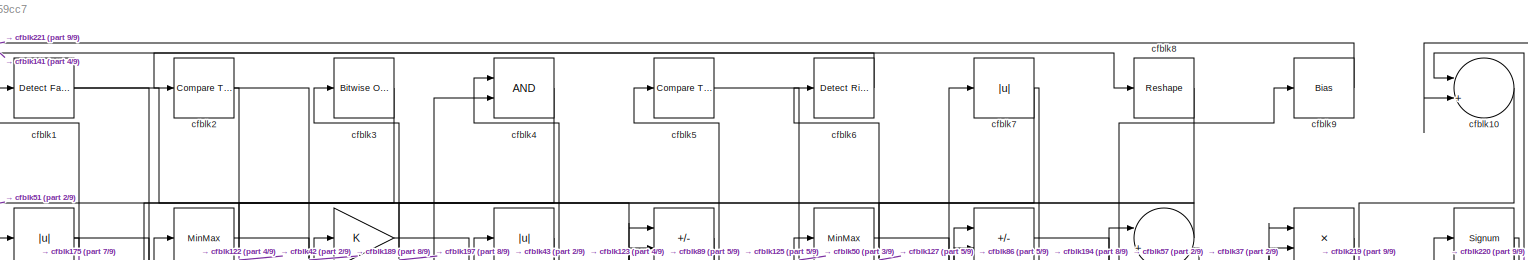
[diagram: root canvas - part 1/9, full width, top band]
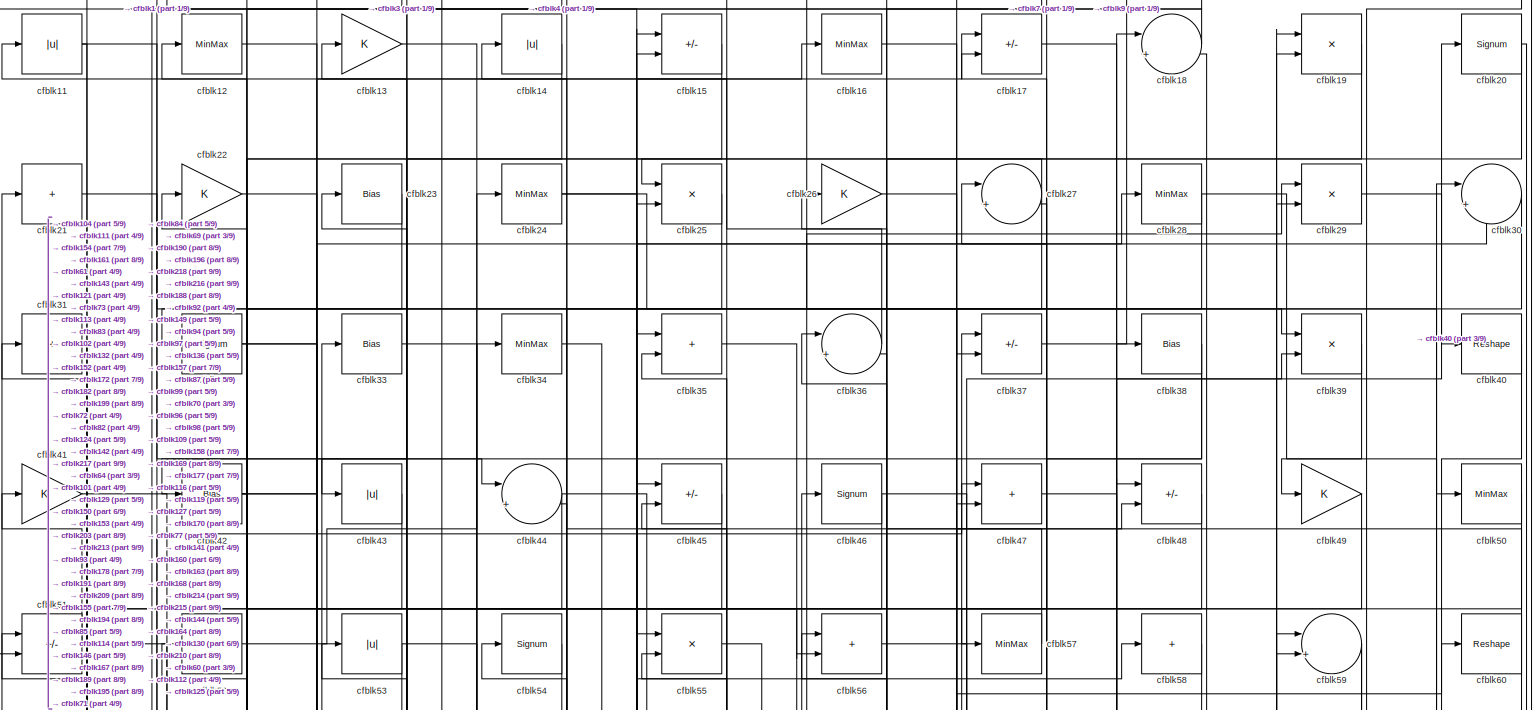
[diagram: root canvas - part 2/9, full width, top band]
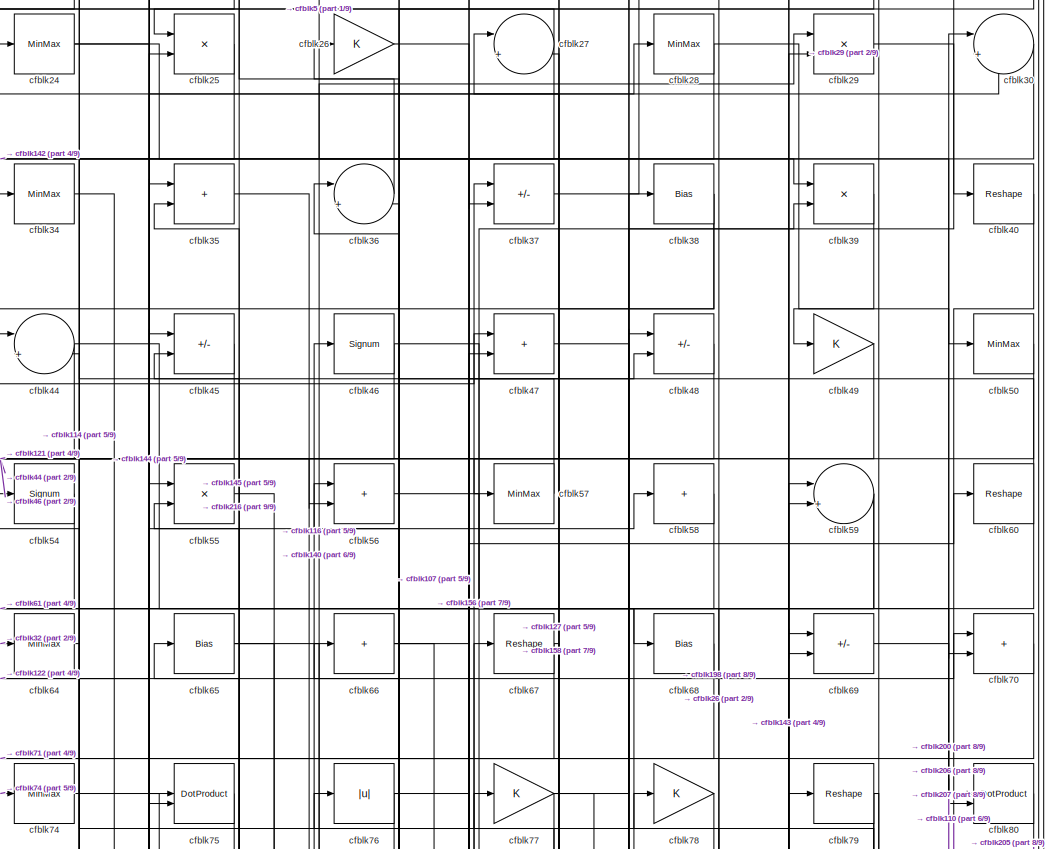
[diagram: root canvas - part 3/9, top center region]
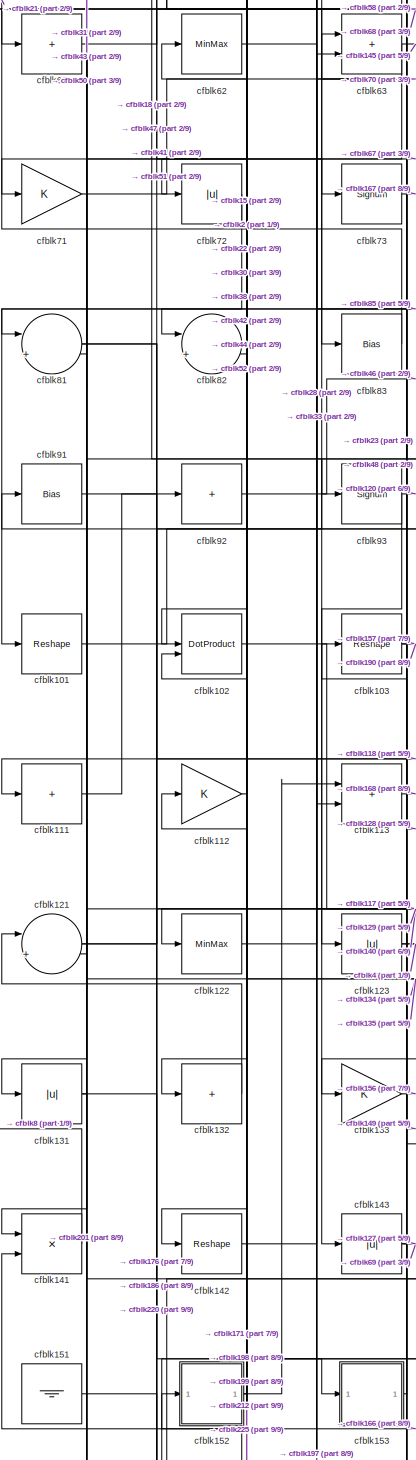
[diagram: root canvas - part 4/9, middle left region]
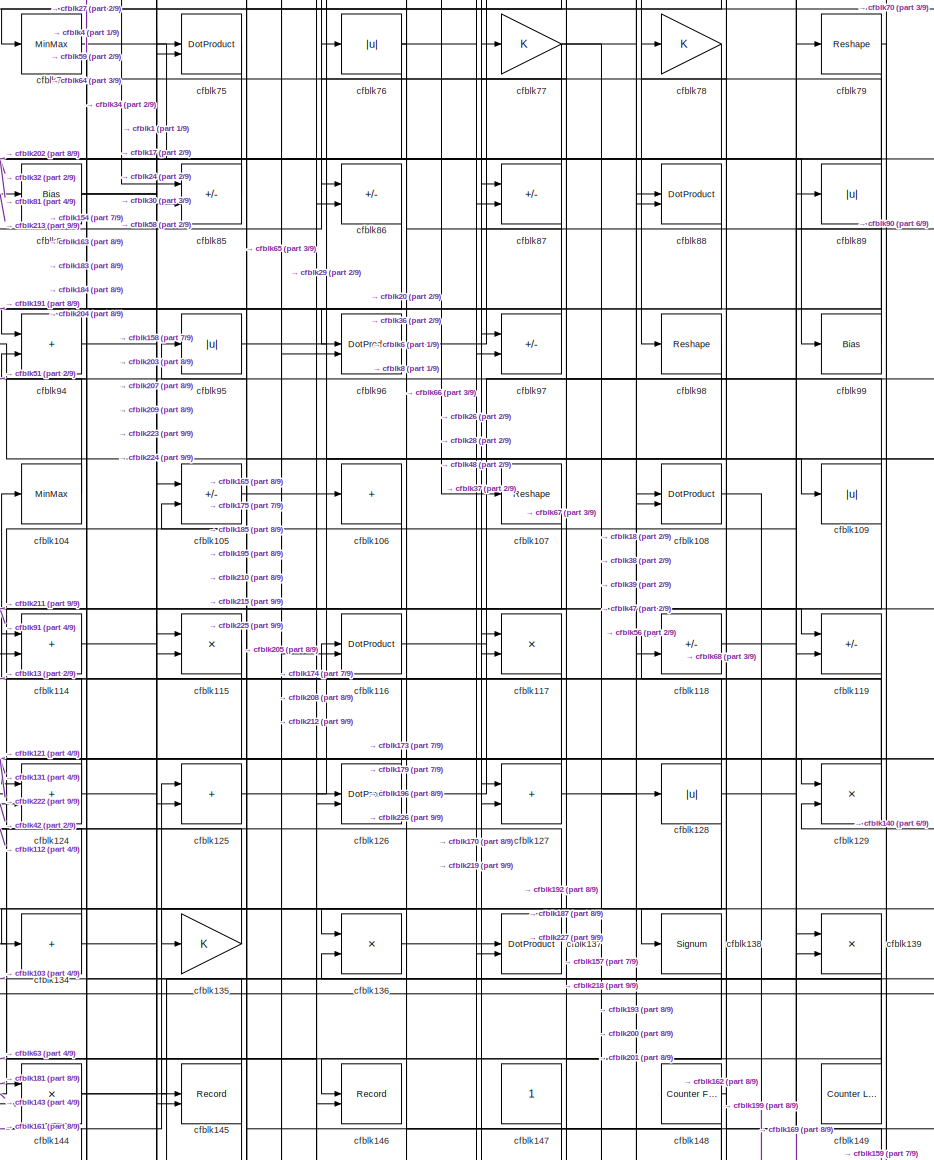
[diagram: root canvas - part 5/9, central region]
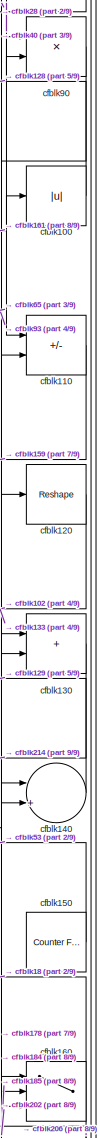
[diagram: root canvas - part 6/9, middle right region]
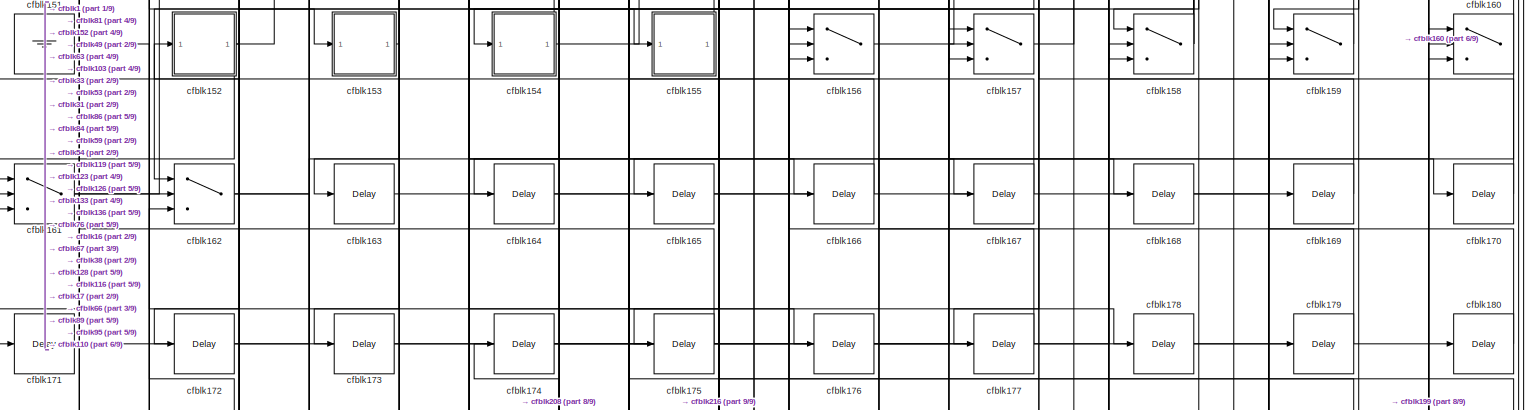
[diagram: root canvas - part 7/9, full width, bottom band]
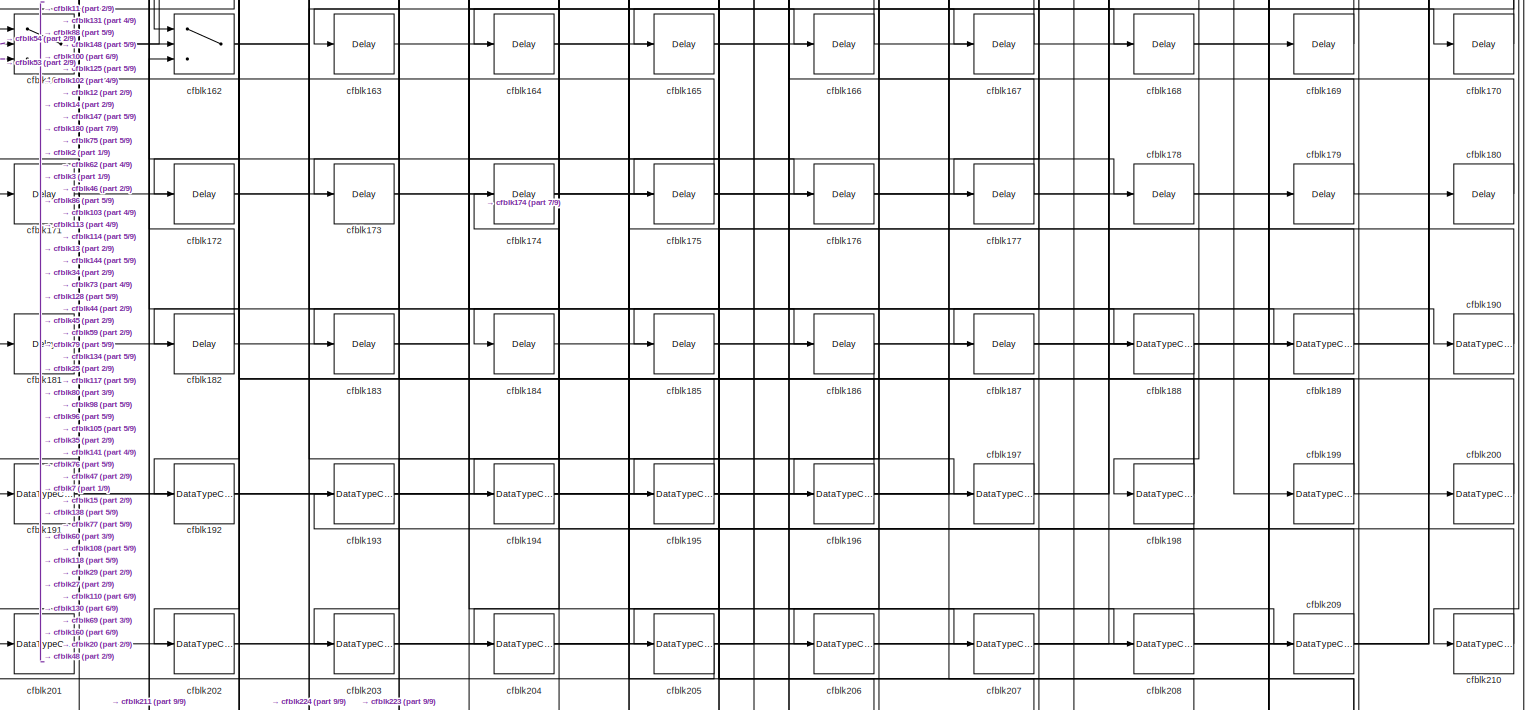
[diagram: root canvas - part 8/9, full width, bottom band]
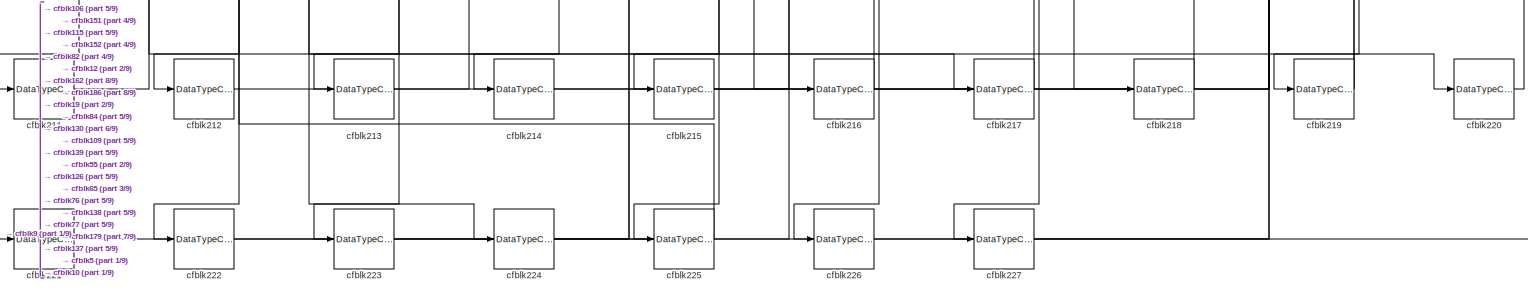
[diagram: root canvas - part 9/9, full width, bottom band]
MODEL slx_86e10d959cc7
KIND model
CONFIG AbsTol = auto
CONFIG EnableMultiTasking = off
CONFIG FixedStep = auto
CONFIG MaxStep = auto
CONFIG MinStep = auto
CONFIG RelTol = 1e-3
CONFIG SampleTimeConstraint = Unconstrained
CONFIG SolverName = VariableStepAuto
CONFIG StartTime = 0.0
CONFIG StopTime = 10.0
BLOCK [Reference] cfblk1  REF=hdlsllib/Logic and Bit
Operations/Detect Fall
Nonpositive
  SourceBlock = hdlsllib/Logic and Bit\nOperations/Detect Fall\nNonpositive
  SourceType = Detect Fall Nonpositive
BLOCK [Sum] cfblk10
  Inputs = |++
BLOCK [Abs] cfblk100
  SaturateOnIntegerOverflow = off
BLOCK [Reshape] cfblk101
BLOCK [DotProduct] cfblk102
  OutDataTypeStr = Inherit: Inherit via internal rule
BLOCK [Reshape] cfblk103
BLOCK [MinMax] cfblk104
BLOCK [Sum] cfblk105
  IconShape = rectangular
  Inputs = +-
BLOCK [Sum] cfblk106
  IconShape = rectangular
  Inputs = +
BLOCK [Reshape] cfblk107
BLOCK [DotProduct] cfblk108
  OutDataTypeStr = Inherit: Inherit via internal rule
BLOCK [Abs] cfblk109
  SaturateOnIntegerOverflow = off
BLOCK [Abs] cfblk11
  SaturateOnIntegerOverflow = off
BLOCK [Sum] cfblk110
  IconShape = rectangular
  Inputs = +-
BLOCK [Sum] cfblk111
  IconShape = rectangular
  Inputs = +
BLOCK [Gain] cfblk112
BLOCK [Sum] cfblk113
  IconShape = rectangular
BLOCK [Sum] cfblk114
  IconShape = rectangular
BLOCK [Product] cfblk115
  Inputs = */
  RndMeth = Zero
  SaturateOnIntegerOverflow = on
BLOCK [DotProduct] cfblk116
  OutDataTypeStr = Inherit: Inherit via internal rule
BLOCK [Product] cfblk117
  Inputs = */
  RndMeth = Zero
  SaturateOnIntegerOverflow = on
BLOCK [Sum] cfblk118
  IconShape = rectangular
  Inputs = +-
BLOCK [Sum] cfblk119
  IconShape = rectangular
  Inputs = +-
BLOCK [MinMax] cfblk12
BLOCK [Reshape] cfblk120
BLOCK [Sum] cfblk121
  Inputs = |++
BLOCK [MinMax] cfblk122
BLOCK [Abs] cfblk123
  SaturateOnIntegerOverflow = off
BLOCK [Sum] cfblk124
  IconShape = rectangular
BLOCK [Sum] cfblk125
  IconShape = rectangular
BLOCK [DotProduct] cfblk126
  OutDataTypeStr = Inherit: Inherit via internal rule
BLOCK [Sum] cfblk127
  IconShape = rectangular
BLOCK [Abs] cfblk128
  SaturateOnIntegerOverflow = off
BLOCK [Product] cfblk129
  Inputs = */
  RndMeth = Zero
  SaturateOnIntegerOverflow = on
BLOCK [Gain] cfblk13
BLOCK [Sum] cfblk130
  IconShape = rectangular
BLOCK [Abs] cfblk131
  SaturateOnIntegerOverflow = off
BLOCK [Sum] cfblk132
  IconShape = rectangular
  Inputs = +
BLOCK [Gain] cfblk133
BLOCK [Sum] cfblk134
  IconShape = rectangular
  Inputs = +
BLOCK [Gain] cfblk135
BLOCK [Product] cfblk136
  Inputs = */
  RndMeth = Zero
  SaturateOnIntegerOverflow = on
BLOCK [DotProduct] cfblk137
  OutDataTypeStr = Inherit: Inherit via internal rule
BLOCK [Signum] cfblk138
BLOCK [Product] cfblk139
  Inputs = */
  RndMeth = Zero
  SaturateOnIntegerOverflow = on
BLOCK [Abs] cfblk14
  SaturateOnIntegerOverflow = off
BLOCK [Sum] cfblk140
  Inputs = |++
BLOCK [Product] cfblk141
  Inputs = */
  RndMeth = Zero
  SaturateOnIntegerOverflow = on
BLOCK [Reshape] cfblk142
BLOCK [Abs] cfblk143
  SaturateOnIntegerOverflow = off
BLOCK [Product] cfblk144
  Inputs = */
  RndMeth = Zero
  SaturateOnIntegerOverflow = on
BLOCK [Record] cfblk145
  CompatibilityTag = XY
  FileSettingsInternal = {"entries":[{"content":{"excelSettings":{"content":{},"type":"Streamout.ExcelSettings"}},"type":"Streamout.FileSettingStorage","uuid":""}],"packageUris":["http:\/\/schema.mathworks.com\/mf0\/streamout_blocks\/R2020a"],"version":"1.0"}
  Layout = [1 1]
  SignalsInternal = {"entries":[{"content":{"signals":[{"content":{"blockPath":[],"dimensions":[1],"domain":"","lineColor":"#a2142f","plots":[1],"port":1,"sid":[""],"signalID":2629,"signalName":"cfblk70"},"type":"RecordBlkView.Signal","uuid":""},{"content":{"blockPath":[],"dimensions":[1],"domain":"","lineColor":"#139fff","plots":[1],"port":2,"sid":[""],"signalID":2633,"signalName":"cfblk63"},"type":"RecordBlkView.Si...<+162ch>
  VisualizationBindings = {"xyplotplugin":{"info":[{"series":[{"bindingParametersList":[{"parameter":"X-Axis","signalID":2629,"signalName":"cfblk70"},{"parameter":"Y-Axis","signalID":2633,"signalName":"cfblk63"}],"seriesID":37578}],"subplotID":1}]}}
  st = -1
BLOCK [Record] cfblk146
  CompatibilityTag = XY
  FileSettingsInternal = {"entries":[{"content":{"excelSettings":{"content":{},"type":"Streamout.ExcelSettings"}},"type":"Streamout.FileSettingStorage","uuid":""}],"packageUris":["http:\/\/schema.mathworks.com\/mf0\/streamout_blocks\/R2020a"],"version":"1.0"}
  Layout = [1 1]
  SignalsInternal = {"entries":[{"content":{"signals":[{"content":{"blockPath":[],"dimensions":[1],"domain":"","lineColor":"#a2142f","plots":[1],"port":1,"sid":[""],"signalID":2639,"signalName":"cfblk78"},"type":"RecordBlkView.Signal","uuid":""},{"content":{"blockPath":[],"dimensions":[1],"domain":"","lineColor":"#139fff","plots":[1],"port":2,"sid":[""],"signalID":2643,"signalName":"cfblk24"},"type":"RecordBlkView.Si...<+162ch>
  VisualizationBindings = {"xyplotplugin":{"info":[{"series":[{"bindingParametersList":[{"parameter":"X-Axis","signalID":2639,"signalName":"cfblk78"},{"parameter":"Y-Axis","signalID":2643,"signalName":"cfblk24"}],"seriesID":61667}],"subplotID":1}]}}
  st = -1
BLOCK [Constant] cfblk147
  SampleTime = -1
BLOCK [Reference] cfblk148  REF=hdlsllib/Sources/Counter
Free-Running
  SourceBlock = hdlsllib/Sources/Counter\nFree-Running
  SourceType = Counter Free-Running
BLOCK [Reference] cfblk149  REF=hdlsllib/Sources/Counter
Limited
  SourceBlock = hdlsllib/Sources/Counter\nLimited
  SourceType = Counter Limited
BLOCK [Sum] cfblk15
  IconShape = rectangular
  Inputs = +-
BLOCK [Reference] cfblk150  REF=hdlsllib/Sources/Counter
Free-Running
  SourceBlock = hdlsllib/Sources/Counter\nFree-Running
  SourceType = Counter Free-Running
BLOCK [Ground] cfblk151
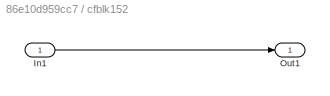
BLOCK [SubSystem] cfblk152
  LibrarySourceBlock = hdlsllib/Ports &\nSubsystems/Subsystem
BLOCK [Inport] cfblk152/In1
BLOCK [Outport] cfblk152/Out1
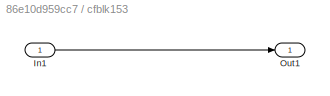
BLOCK [SubSystem] cfblk153
  LibrarySourceBlock = hdlsllib/Ports &\nSubsystems/Subsystem
BLOCK [Inport] cfblk153/In1
BLOCK [Outport] cfblk153/Out1
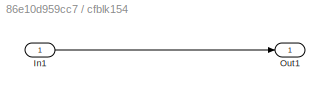
BLOCK [SubSystem] cfblk154
  LibrarySourceBlock = hdlsllib/Ports &\nSubsystems/Subsystem
BLOCK [Inport] cfblk154/In1
BLOCK [Outport] cfblk154/Out1
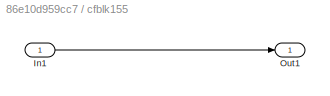
BLOCK [SubSystem] cfblk155
  LibrarySourceBlock = hdlsllib/Ports &\nSubsystems/Subsystem
BLOCK [Inport] cfblk155/In1
BLOCK [Outport] cfblk155/Out1
BLOCK [Switch] cfblk156
  InputSameDT = off
  SaturateOnIntegerOverflow = off
BLOCK [Switch] cfblk157
  InputSameDT = off
  SaturateOnIntegerOverflow = off
BLOCK [Switch] cfblk158
  InputSameDT = off
  SaturateOnIntegerOverflow = off
BLOCK [Switch] cfblk159
  InputSameDT = off
  SaturateOnIntegerOverflow = off
BLOCK [MinMax] cfblk16
BLOCK [Switch] cfblk160
  InputSameDT = off
  SaturateOnIntegerOverflow = off
BLOCK [Switch] cfblk161
  InputSameDT = off
  SaturateOnIntegerOverflow = off
BLOCK [Switch] cfblk162
  InputSameDT = off
  SaturateOnIntegerOverflow = off
BLOCK [Delay] cfblk163
  InputPortMap = u0
  SampleTime = 1
BLOCK [Delay] cfblk164
  InputPortMap = u0
  SampleTime = 1
BLOCK [Delay] cfblk165
  InputPortMap = u0
  SampleTime = 1
BLOCK [Delay] cfblk166
  InputPortMap = u0
  SampleTime = 1
BLOCK [Delay] cfblk167
  InputPortMap = u0
  SampleTime = 1
BLOCK [Delay] cfblk168
  InputPortMap = u0
  SampleTime = 1
BLOCK [Delay] cfblk169
  InputPortMap = u0
  SampleTime = 1
BLOCK [Sum] cfblk17
  IconShape = rectangular
  Inputs = +-
BLOCK [Delay] cfblk170
  InputPortMap = u0
  SampleTime = 1
BLOCK [Delay] cfblk171
  InputPortMap = u0
  SampleTime = 1
BLOCK [Delay] cfblk172
  InputPortMap = u0
  SampleTime = 1
BLOCK [Delay] cfblk173
  InputPortMap = u0
  SampleTime = 1
BLOCK [Delay] cfblk174
  InputPortMap = u0
  SampleTime = 1
BLOCK [Delay] cfblk175
  InputPortMap = u0
  SampleTime = 1
BLOCK [Delay] cfblk176
  InputPortMap = u0
  SampleTime = 1
BLOCK [Delay] cfblk177
  InputPortMap = u0
  SampleTime = 1
BLOCK [Delay] cfblk178
  InputPortMap = u0
  SampleTime = 1
BLOCK [Delay] cfblk179
  InputPortMap = u0
  SampleTime = 1
BLOCK [Sum] cfblk18
  Inputs = |++
BLOCK [Delay] cfblk180
  InputPortMap = u0
  SampleTime = 1
BLOCK [Delay] cfblk181
  InputPortMap = u0
  SampleTime = 1
BLOCK [Delay] cfblk182
  InputPortMap = u0
  SampleTime = 1
BLOCK [Delay] cfblk183
  InputPortMap = u0
  SampleTime = 1
BLOCK [Delay] cfblk184
  InputPortMap = u0
  SampleTime = 1
BLOCK [Delay] cfblk185
  InputPortMap = u0
  SampleTime = 1
BLOCK [Delay] cfblk186
  InputPortMap = u0
  SampleTime = 1
BLOCK [Delay] cfblk187
  InputPortMap = u0
  SampleTime = 1
BLOCK [DataTypeConversion] cfblk188
  OutDataTypeStr = uint8
  RndMeth = Floor
  SaturateOnIntegerOverflow = off
BLOCK [DataTypeConversion] cfblk189
  OutDataTypeStr = uint8
  RndMeth = Floor
  SaturateOnIntegerOverflow = off
BLOCK [Product] cfblk19
  Inputs = */
  RndMeth = Zero
  SaturateOnIntegerOverflow = on
BLOCK [DataTypeConversion] cfblk190
  OutDataTypeStr = uint8
  RndMeth = Floor
  SaturateOnIntegerOverflow = off
BLOCK [DataTypeConversion] cfblk191
  RndMeth = Floor
  SaturateOnIntegerOverflow = off
BLOCK [DataTypeConversion] cfblk192
  OutDataTypeStr = uint8
  RndMeth = Floor
  SaturateOnIntegerOverflow = off
BLOCK [DataTypeConversion] cfblk193
  OutDataTypeStr = uint8
  RndMeth = Floor
  SaturateOnIntegerOverflow = off
BLOCK [DataTypeConversion] cfblk194
  RndMeth = Floor
  SaturateOnIntegerOverflow = off
BLOCK [DataTypeConversion] cfblk195
  OutDataTypeStr = uint8
  RndMeth = Floor
  SaturateOnIntegerOverflow = off
BLOCK [DataTypeConversion] cfblk196
  OutDataTypeStr = uint8
  RndMeth = Floor
  SaturateOnIntegerOverflow = off
BLOCK [DataTypeConversion] cfblk197
  OutDataTypeStr = uint8
  RndMeth = Floor
  SaturateOnIntegerOverflow = off
BLOCK [DataTypeConversion] cfblk198
  OutDataTypeStr = uint8
  RndMeth = Floor
  SaturateOnIntegerOverflow = off
BLOCK [DataTypeConversion] cfblk199
  RndMeth = Floor
  SaturateOnIntegerOverflow = off
BLOCK [Reference] cfblk2  REF=hdlsllib/Logic and Bit
Operations/Compare
To Constant
  SourceBlock = hdlsllib/Logic and Bit\nOperations/Compare\nTo Constant
  SourceType = Compare To Constant
BLOCK [Signum] cfblk20
BLOCK [DataTypeConversion] cfblk200
  OutDataTypeStr = uint8
  RndMeth = Floor
  SaturateOnIntegerOverflow = off
BLOCK [DataTypeConversion] cfblk201
  OutDataTypeStr = uint8
  RndMeth = Floor
  SaturateOnIntegerOverflow = off
BLOCK [DataTypeConversion] cfblk202
  OutDataTypeStr = uint8
  RndMeth = Floor
  SaturateOnIntegerOverflow = off
BLOCK [DataTypeConversion] cfblk203
  OutDataTypeStr = uint8
  RndMeth = Floor
  SaturateOnIntegerOverflow = off
BLOCK [DataTypeConversion] cfblk204
  OutDataTypeStr = uint8
  RndMeth = Floor
  SaturateOnIntegerOverflow = off
BLOCK [DataTypeConversion] cfblk205
  RndMeth = Floor
  SaturateOnIntegerOverflow = off
BLOCK [DataTypeConversion] cfblk206
  OutDataTypeStr = uint8
  RndMeth = Floor
  SaturateOnIntegerOverflow = off
BLOCK [DataTypeConversion] cfblk207
  OutDataTypeStr = uint8
  RndMeth = Floor
  SaturateOnIntegerOverflow = off
BLOCK [DataTypeConversion] cfblk208
  OutDataTypeStr = uint8
  RndMeth = Floor
  SaturateOnIntegerOverflow = off
BLOCK [DataTypeConversion] cfblk209
  OutDataTypeStr = uint8
  RndMeth = Floor
  SaturateOnIntegerOverflow = off
BLOCK [Sum] cfblk21
  IconShape = rectangular
  Inputs = +
BLOCK [DataTypeConversion] cfblk210
  OutDataTypeStr = uint8
  RndMeth = Floor
  SaturateOnIntegerOverflow = off
BLOCK [DataTypeConversion] cfblk211
  OutDataTypeStr = uint8
  RndMeth = Floor
  SaturateOnIntegerOverflow = off
BLOCK [DataTypeConversion] cfblk212
  OutDataTypeStr = uint8
  RndMeth = Floor
  SaturateOnIntegerOverflow = off
BLOCK [DataTypeConversion] cfblk213
  OutDataTypeStr = uint8
  RndMeth = Floor
  SaturateOnIntegerOverflow = off
BLOCK [DataTypeConversion] cfblk214
  OutDataTypeStr = uint8
  RndMeth = Floor
  SaturateOnIntegerOverflow = off
BLOCK [DataTypeConversion] cfblk215
  OutDataTypeStr = uint8
  RndMeth = Floor
  SaturateOnIntegerOverflow = off
BLOCK [DataTypeConversion] cfblk216
  RndMeth = Floor
  SaturateOnIntegerOverflow = off
BLOCK [DataTypeConversion] cfblk217
  OutDataTypeStr = uint8
  RndMeth = Floor
  SaturateOnIntegerOverflow = off
BLOCK [DataTypeConversion] cfblk218
  OutDataTypeStr = uint8
  RndMeth = Floor
  SaturateOnIntegerOverflow = off
BLOCK [DataTypeConversion] cfblk219
  RndMeth = Floor
  SaturateOnIntegerOverflow = off
BLOCK [Gain] cfblk22
BLOCK [DataTypeConversion] cfblk220
  OutDataTypeStr = uint8
  RndMeth = Floor
  SaturateOnIntegerOverflow = off
BLOCK [DataTypeConversion] cfblk221
  OutDataTypeStr = uint8
  RndMeth = Floor
  SaturateOnIntegerOverflow = off
BLOCK [DataTypeConversion] cfblk222
  OutDataTypeStr = uint8
  RndMeth = Floor
  SaturateOnIntegerOverflow = off
BLOCK [DataTypeConversion] cfblk223
  OutDataTypeStr = uint8
  RndMeth = Floor
  SaturateOnIntegerOverflow = off
BLOCK [DataTypeConversion] cfblk224
  OutDataTypeStr = uint8
  RndMeth = Floor
  SaturateOnIntegerOverflow = off
BLOCK [DataTypeConversion] cfblk225
  OutDataTypeStr = uint8
  RndMeth = Floor
  SaturateOnIntegerOverflow = off
BLOCK [DataTypeConversion] cfblk226
  OutDataTypeStr = uint8
  RndMeth = Floor
  SaturateOnIntegerOverflow = off
BLOCK [DataTypeConversion] cfblk227
  OutDataTypeStr = uint8
  RndMeth = Floor
  SaturateOnIntegerOverflow = off
BLOCK [Bias] cfblk23
  Bias = 0.0
  SaturateOnIntegerOverflow = off
BLOCK [MinMax] cfblk24
BLOCK [Product] cfblk25
  Inputs = */
  RndMeth = Zero
  SaturateOnIntegerOverflow = on
BLOCK [Gain] cfblk26
BLOCK [Sum] cfblk27
  Inputs = |++
BLOCK [MinMax] cfblk28
BLOCK [Product] cfblk29
  Inputs = */
  RndMeth = Zero
  SaturateOnIntegerOverflow = on
BLOCK [Reference] cfblk3  REF=simulink/Logic and Bit
Operations/Bitwise
Operator
  LibrarySourceBlock = hdlsllib/Logic and Bit\nOperations/Bitwise\nOperator
  SourceBlock = simulink/Logic and Bit\nOperations/Bitwise\nOperator
  SourceType = Bitwise Operator
BLOCK [Sum] cfblk30
  Inputs = |++
BLOCK [Sum] cfblk31
  IconShape = rectangular
  Inputs = +
BLOCK [Signum] cfblk32
BLOCK [Bias] cfblk33
  Bias = 0.0
  SaturateOnIntegerOverflow = off
BLOCK [MinMax] cfblk34
BLOCK [Sum] cfblk35
  IconShape = rectangular
BLOCK [Sum] cfblk36
  Inputs = |++
BLOCK [Sum] cfblk37
  IconShape = rectangular
  Inputs = +-
BLOCK [Bias] cfblk38
  Bias = 0.0
  SaturateOnIntegerOverflow = off
BLOCK [Product] cfblk39
  Inputs = */
  RndMeth = Zero
  SaturateOnIntegerOverflow = on
BLOCK [Logic] cfblk4
  AllPortsSameDT = off
  OutDataTypeStr = boolean
BLOCK [Reshape] cfblk40
BLOCK [Gain] cfblk41
BLOCK [Bias] cfblk42
  Bias = 0.0
  SaturateOnIntegerOverflow = off
BLOCK [Abs] cfblk43
  SaturateOnIntegerOverflow = off
BLOCK [Sum] cfblk44
  Inputs = |++
BLOCK [Sum] cfblk45
  IconShape = rectangular
  Inputs = +-
BLOCK [Signum] cfblk46
BLOCK [Sum] cfblk47
  IconShape = rectangular
BLOCK [Sum] cfblk48
  IconShape = rectangular
  Inputs = +-
BLOCK [Gain] cfblk49
BLOCK [Reference] cfblk5  REF=hdlsllib/Logic and Bit
Operations/Compare
To Constant
  SourceBlock = hdlsllib/Logic and Bit\nOperations/Compare\nTo Constant
  SourceType = Compare To Constant
BLOCK [MinMax] cfblk50
BLOCK [Sum] cfblk51
  IconShape = rectangular
  Inputs = +-
BLOCK [Sum] cfblk52
  IconShape = rectangular
  Inputs = +
BLOCK [Abs] cfblk53
  SaturateOnIntegerOverflow = off
BLOCK [Signum] cfblk54
BLOCK [Product] cfblk55
  Inputs = */
  RndMeth = Zero
  SaturateOnIntegerOverflow = on
BLOCK [Sum] cfblk56
  IconShape = rectangular
BLOCK [MinMax] cfblk57
BLOCK [Sum] cfblk58
  IconShape = rectangular
  Inputs = +
BLOCK [Sum] cfblk59
  Inputs = |++
BLOCK [Reference] cfblk6  REF=hdlsllib/Logic and Bit
Operations/Detect Rise
Positive
  SourceBlock = hdlsllib/Logic and Bit\nOperations/Detect Rise\nPositive
  SourceType = Detect Rise Positive
BLOCK [Reshape] cfblk60
BLOCK [Sum] cfblk61
  IconShape = rectangular
  Inputs = +
BLOCK [MinMax] cfblk62
BLOCK [Sum] cfblk63
  IconShape = rectangular
BLOCK [MinMax] cfblk64
BLOCK [Bias] cfblk65
  Bias = 0.0
  SaturateOnIntegerOverflow = off
BLOCK [Sum] cfblk66
  IconShape = rectangular
  Inputs = +
BLOCK [Reshape] cfblk67
BLOCK [Bias] cfblk68
  Bias = 0.0
  SaturateOnIntegerOverflow = off
BLOCK [Sum] cfblk69
  IconShape = rectangular
  Inputs = +-
BLOCK [Abs] cfblk7
  SaturateOnIntegerOverflow = off
BLOCK [Sum] cfblk70
  IconShape = rectangular
BLOCK [Gain] cfblk71
BLOCK [Abs] cfblk72
  SaturateOnIntegerOverflow = off
BLOCK [Signum] cfblk73
BLOCK [MinMax] cfblk74
BLOCK [DotProduct] cfblk75
  OutDataTypeStr = Inherit: Inherit via internal rule
BLOCK [Abs] cfblk76
  SaturateOnIntegerOverflow = off
BLOCK [Gain] cfblk77
BLOCK [Gain] cfblk78
BLOCK [Reshape] cfblk79
BLOCK [Reshape] cfblk8
BLOCK [DotProduct] cfblk80
  OutDataTypeStr = Inherit: Inherit via internal rule
BLOCK [Sum] cfblk81
  Inputs = |++
BLOCK [Sum] cfblk82
  Inputs = |++
BLOCK [Bias] cfblk83
  Bias = 0.0
  SaturateOnIntegerOverflow = off
BLOCK [Bias] cfblk84
  Bias = 0.0
  SaturateOnIntegerOverflow = off
BLOCK [Sum] cfblk85
  IconShape = rectangular
  Inputs = +-
BLOCK [Sum] cfblk86
  IconShape = rectangular
  Inputs = +-
BLOCK [Sum] cfblk87
  IconShape = rectangular
  Inputs = +-
BLOCK [DotProduct] cfblk88
  OutDataTypeStr = Inherit: Inherit via internal rule
BLOCK [Abs] cfblk89
  SaturateOnIntegerOverflow = off
BLOCK [Bias] cfblk9
  Bias = 0.0
  SaturateOnIntegerOverflow = off
BLOCK [Product] cfblk90
  Inputs = */
  RndMeth = Zero
  SaturateOnIntegerOverflow = on
BLOCK [Bias] cfblk91
  Bias = 0.0
  SaturateOnIntegerOverflow = off
BLOCK [Sum] cfblk92
  IconShape = rectangular
  Inputs = +
BLOCK [Signum] cfblk93
BLOCK [Sum] cfblk94
  IconShape = rectangular
BLOCK [Abs] cfblk95
  SaturateOnIntegerOverflow = off
BLOCK [DotProduct] cfblk96
  OutDataTypeStr = Inherit: Inherit via internal rule
BLOCK [Sum] cfblk97
  IconShape = rectangular
  Inputs = +-
BLOCK [Reshape] cfblk98
BLOCK [Bias] cfblk99
  Bias = 0.0
  SaturateOnIntegerOverflow = off
LINE cfblk100:1 -> cfblk90:1
LINE cfblk101:1 -> cfblk33:1
LINE cfblk102:1 -> cfblk140:2
NET cfblk103:1 -> cfblk157:3, cfblk190:1
LINE cfblk104:1 -> cfblk51:1
LINE cfblk105:1 -> cfblk208:1
LINE cfblk106:1 -> cfblk211:1
LINE cfblk107:1 -> cfblk134:1
LINE cfblk108:1 -> cfblk199:1
NET cfblk109:1 -> cfblk215:1, cfblk27:2
LINE cfblk10:1 -> cfblk219:1
LINE cfblk110:1 -> cfblk159:1
LINE cfblk111:1 -> cfblk92:1
LINE cfblk112:1 -> cfblk22:1
LINE cfblk113:1 -> cfblk168:1
LINE cfblk114:1 -> cfblk58:1
LINE cfblk115:1 -> cfblk222:1
LINE cfblk116:1 -> cfblk38:1
NET cfblk117:1 -> cfblk131:1, cfblk135:1, cfblk185:1
LINE cfblk118:1 -> cfblk169:1
LINE cfblk119:1 -> cfblk175:1
NET cfblk11:1 -> cfblk161:1, cfblk44:1
LINE cfblk120:1 -> cfblk133:1
NET cfblk121:1 -> cfblk129:1, cfblk47:1
LINE cfblk122:1 -> cfblk70:1
NET cfblk123:1 -> cfblk156:3, cfblk4:2
NET cfblk124:1 -> cfblk104:1, cfblk117:2
LINE cfblk125:1 -> cfblk29:1
NET cfblk126:1 -> cfblk89:1, cfblk94:2
NET cfblk127:1 -> cfblk39:2, cfblk6:1
NET cfblk128:1 -> cfblk183:1, cfblk184:1, cfblk63:1, cfblk90:2
NET cfblk129:1 -> cfblk118:1, cfblk13:1, cfblk76:1
LINE cfblk12:1 -> cfblk217:1
LINE cfblk130:1 -> cfblk214:1
NET cfblk131:1 -> cfblk186:1, cfblk201:1
LINE cfblk132:1 -> cfblk121:1
LINE cfblk133:1 -> cfblk156:1
NET cfblk134:1 -> cfblk207:1, cfblk91:1
LINE cfblk135:1 -> cfblk112:1
LINE cfblk136:1 -> cfblk48:2
LINE cfblk137:1 -> cfblk97:1
NET cfblk138:1 -> cfblk187:1, cfblk196:1, cfblk227:1
LINE cfblk139:1 -> cfblk225:1
LINE cfblk13:1 -> cfblk209:1
LINE cfblk140:1 -> cfblk129:2
LINE cfblk141:1 -> cfblk8:1
LINE cfblk142:1 -> cfblk28:1
NET cfblk143:1 -> cfblk127:2, cfblk69:1
NET cfblk144:1 -> cfblk30:1, cfblk30:2
LINE cfblk147:1 -> cfblk192:1
NET cfblk148:1 -> cfblk162:1, cfblk78:1
NET cfblk149:1 -> cfblk103:1, cfblk36:1, cfblk77:1
LINE cfblk14:1 -> cfblk182:1
LINE cfblk150:1 -> cfblk53:1
LINE cfblk151:1 -> cfblk220:1
LINE cfblk152/In1:1 -> cfblk152/Out1:1
NET cfblk152:1 -> cfblk113:1, cfblk171:1, cfblk52:1
LINE cfblk153/In1:1 -> cfblk153/Out1:1
LINE cfblk153:1 -> cfblk23:1
LINE cfblk154/In1:1 -> cfblk154/Out1:1
NET cfblk154:1 -> cfblk31:1, cfblk59:1
LINE cfblk155/In1:1 -> cfblk155/Out1:1
LINE cfblk155:1 -> cfblk54:1
LINE cfblk156:1 -> cfblk67:1
LINE cfblk157:1 -> cfblk128:1
NET cfblk158:1 -> cfblk116:1, cfblk17:1, cfblk66:1
LINE cfblk159:1 -> cfblk95:1
LINE cfblk15:1 -> cfblk82:1
NET cfblk160:1 -> cfblk18:2, cfblk206:1
NET cfblk161:1 -> cfblk100:1, cfblk125:1
NET cfblk162:1 -> cfblk166:1, cfblk224:1
LINE cfblk163:1 -> cfblk29:2
LINE cfblk164:1 -> cfblk25:2
LINE cfblk165:1 -> cfblk86:2
LINE cfblk166:1 -> cfblk141:2
LINE cfblk167:1 -> cfblk15:1
LINE cfblk168:1 -> cfblk59:2
LINE cfblk169:1 -> cfblk27:1
LINE cfblk16:1 -> cfblk157:1
LINE cfblk170:1 -> cfblk48:1
LINE cfblk171:1 -> cfblk63:2
LINE cfblk172:1 -> cfblk157:2
LINE cfblk173:1 -> cfblk158:2
LINE cfblk174:1 -> cfblk126:2
LINE cfblk175:1 -> cfblk1:1
LINE cfblk176:1 -> cfblk159:3
LINE cfblk177:1 -> cfblk156:2
LINE cfblk178:1 -> cfblk160:3
LINE cfblk179:1 -> cfblk136:2
LINE cfblk17:1 -> cfblk119:1
LINE cfblk180:1 -> cfblk159:2
LINE cfblk181:1 -> cfblk144:1
LINE cfblk182:1 -> cfblk162:2
LINE cfblk183:1 -> cfblk114:2
LINE cfblk184:1 -> cfblk130:2
LINE cfblk185:1 -> cfblk110:2
LINE cfblk186:1 -> cfblk223:1
LINE cfblk187:1 -> cfblk79:1
LINE cfblk188:1 -> cfblk193:1
LINE cfblk189:1 -> cfblk35:1
LINE cfblk18:1 -> cfblk143:1
LINE cfblk190:1 -> cfblk35:2
NET cfblk191:1 -> cfblk34:1, cfblk47:2
LINE cfblk192:1 -> cfblk88:1
LINE cfblk193:1 -> cfblk88:2
NET cfblk194:1 -> cfblk44:2, cfblk7:1
LINE cfblk195:1 -> cfblk45:1
LINE cfblk196:1 -> cfblk45:2
LINE cfblk197:1 -> cfblk3:1
LINE cfblk198:1 -> cfblk62:1
NET cfblk199:1 -> cfblk102:2, cfblk12:1, cfblk180:1
LINE cfblk19:1 -> cfblk213:1
NET cfblk1:1 -> cfblk125:2, cfblk37:2
LINE cfblk200:1 -> cfblk108:1
LINE cfblk201:1 -> cfblk108:2
LINE cfblk202:1 -> cfblk160:1
LINE cfblk203:1 -> cfblk75:1
LINE cfblk204:1 -> cfblk75:2
NET cfblk205:1 -> cfblk181:1, cfblk96:2
LINE cfblk206:1 -> cfblk80:1
LINE cfblk207:1 -> cfblk80:2
LINE cfblk208:1 -> cfblk174:1
LINE cfblk209:1 -> cfblk105:1
NET cfblk20:1 -> cfblk210:1, cfblk94:1
LINE cfblk210:1 -> cfblk105:2
LINE cfblk211:1 -> cfblk162:3
LINE cfblk212:1 -> cfblk106:1
LINE cfblk213:1 -> cfblk84:1
LINE cfblk214:1 -> cfblk19:1
LINE cfblk215:1 -> cfblk19:2
NET cfblk216:1 -> cfblk179:1, cfblk65:1
LINE cfblk217:1 -> cfblk55:1
LINE cfblk218:1 -> cfblk55:2
NET cfblk219:1 -> cfblk137:1, cfblk5:1
LINE cfblk21:1 -> cfblk73:1
LINE cfblk220:1 -> cfblk10:1
LINE cfblk221:1 -> cfblk10:2
LINE cfblk222:1 -> cfblk126:1
LINE cfblk223:1 -> cfblk115:1
LINE cfblk224:1 -> cfblk115:2
LINE cfblk225:1 -> cfblk152:1
LINE cfblk226:1 -> cfblk139:1
LINE cfblk227:1 -> cfblk139:2
LINE cfblk22:1 -> cfblk56:2
LINE cfblk23:1 -> cfblk132:1
NET cfblk24:1 -> cfblk146:2, cfblk39:1
LINE cfblk25:1 -> cfblk32:1
LINE cfblk26:1 -> cfblk97:2
NET cfblk27:1 -> cfblk124:1, cfblk25:1
NET cfblk28:1 -> cfblk130:1, cfblk87:2
LINE cfblk29:1 -> cfblk40:1
NET cfblk2:1 -> cfblk122:1, cfblk189:1
LINE cfblk30:1 -> cfblk142:1
LINE cfblk31:1 -> cfblk61:1
NET cfblk32:1 -> cfblk64:1, cfblk85:2
LINE cfblk33:1 -> cfblk178:1
LINE cfblk34:1 -> cfblk85:1
LINE cfblk35:1 -> cfblk188:1
LINE cfblk36:1 -> cfblk14:1
LINE cfblk37:1 -> cfblk9:1
NET cfblk38:1 -> cfblk177:1, cfblk72:1
LINE cfblk39:1 -> cfblk49:1
LINE cfblk3:1 -> cfblk42:1
LINE cfblk40:1 -> cfblk110:1
LINE cfblk41:1 -> cfblk83:1
NET cfblk42:1 -> cfblk102:1, cfblk124:2, cfblk16:1
LINE cfblk43:1 -> cfblk111:1
NET cfblk44:1 -> cfblk69:2, cfblk82:2
LINE cfblk45:1 -> cfblk194:1
NET cfblk46:1 -> cfblk203:1, cfblk70:2
LINE cfblk47:1 -> cfblk119:2
LINE cfblk48:1 -> cfblk93:1
LINE cfblk49:1 -> cfblk172:1
LINE cfblk4:1 -> cfblk51:2
LINE cfblk50:1 -> cfblk121:2
NET cfblk51:1 -> cfblk113:2, cfblk41:1
LINE cfblk52:1 -> cfblk24:1
NET cfblk53:1 -> cfblk155:1, cfblk161:3
LINE cfblk54:1 -> cfblk161:2
LINE cfblk55:1 -> cfblk216:1
LINE cfblk56:1 -> cfblk98:1
LINE cfblk57:1 -> cfblk11:1
LINE cfblk58:1 -> cfblk141:1
NET cfblk59:1 -> cfblk144:2, cfblk164:1
LINE cfblk5:1 -> cfblk50:1
NET cfblk60:1 -> cfblk198:1, cfblk26:1
LINE cfblk61:1 -> cfblk68:1
LINE cfblk62:1 -> cfblk197:1
NET cfblk63:1 -> cfblk145:2, cfblk81:2
LINE cfblk64:1 -> cfblk114:1
NET cfblk65:1 -> cfblk116:2, cfblk140:1
NET cfblk66:1 -> cfblk107:1, cfblk60:1
NET cfblk67:1 -> cfblk127:1, cfblk71:1
LINE cfblk68:1 -> cfblk74:1
LINE cfblk69:1 -> cfblk200:1
LINE cfblk6:1 -> cfblk2:1
LINE cfblk70:1 -> cfblk145:1
LINE cfblk71:1 -> cfblk15:2
LINE cfblk72:1 -> cfblk101:1
LINE cfblk73:1 -> cfblk167:1
LINE cfblk74:1 -> cfblk99:1
LINE cfblk75:1 -> cfblk202:1
NET cfblk76:1 -> cfblk170:1, cfblk173:1, cfblk226:1
NET cfblk77:1 -> cfblk18:1, cfblk195:1, cfblk218:1
LINE cfblk78:1 -> cfblk146:1
NET cfblk79:1 -> cfblk117:1, cfblk138:1, cfblk204:1
NET cfblk7:1 -> cfblk43:1, cfblk57:1
LINE cfblk80:1 -> cfblk205:1
NET cfblk81:1 -> cfblk153:1, cfblk176:1
LINE cfblk82:1 -> cfblk212:1
LINE cfblk83:1 -> cfblk21:1
NET cfblk84:1 -> cfblk158:3, cfblk17:2, cfblk87:1
LINE cfblk85:1 -> cfblk81:1
NET cfblk86:1 -> cfblk154:1, cfblk163:1
NET cfblk87:1 -> cfblk136:1, cfblk56:1
LINE cfblk88:1 -> cfblk191:1
NET cfblk89:1 -> cfblk158:1, cfblk4:1, cfblk96:1
LINE cfblk8:1 -> cfblk86:1
LINE cfblk90:1 -> cfblk160:2
LINE cfblk91:1 -> cfblk118:2
LINE cfblk92:1 -> cfblk46:1
NET cfblk93:1 -> cfblk120:1, cfblk123:1
LINE cfblk94:1 -> cfblk137:2
LINE cfblk95:1 -> cfblk109:1
LINE cfblk96:1 -> cfblk20:1
LINE cfblk97:1 -> cfblk36:2
LINE cfblk98:1 -> cfblk165:1
LINE cfblk99:1 -> cfblk37:1
LINE cfblk9:1 -> cfblk221:1
note: NET lines group one-source signal fan-out (src -> all destinations, sorted); 1:1 wires keep LINE
